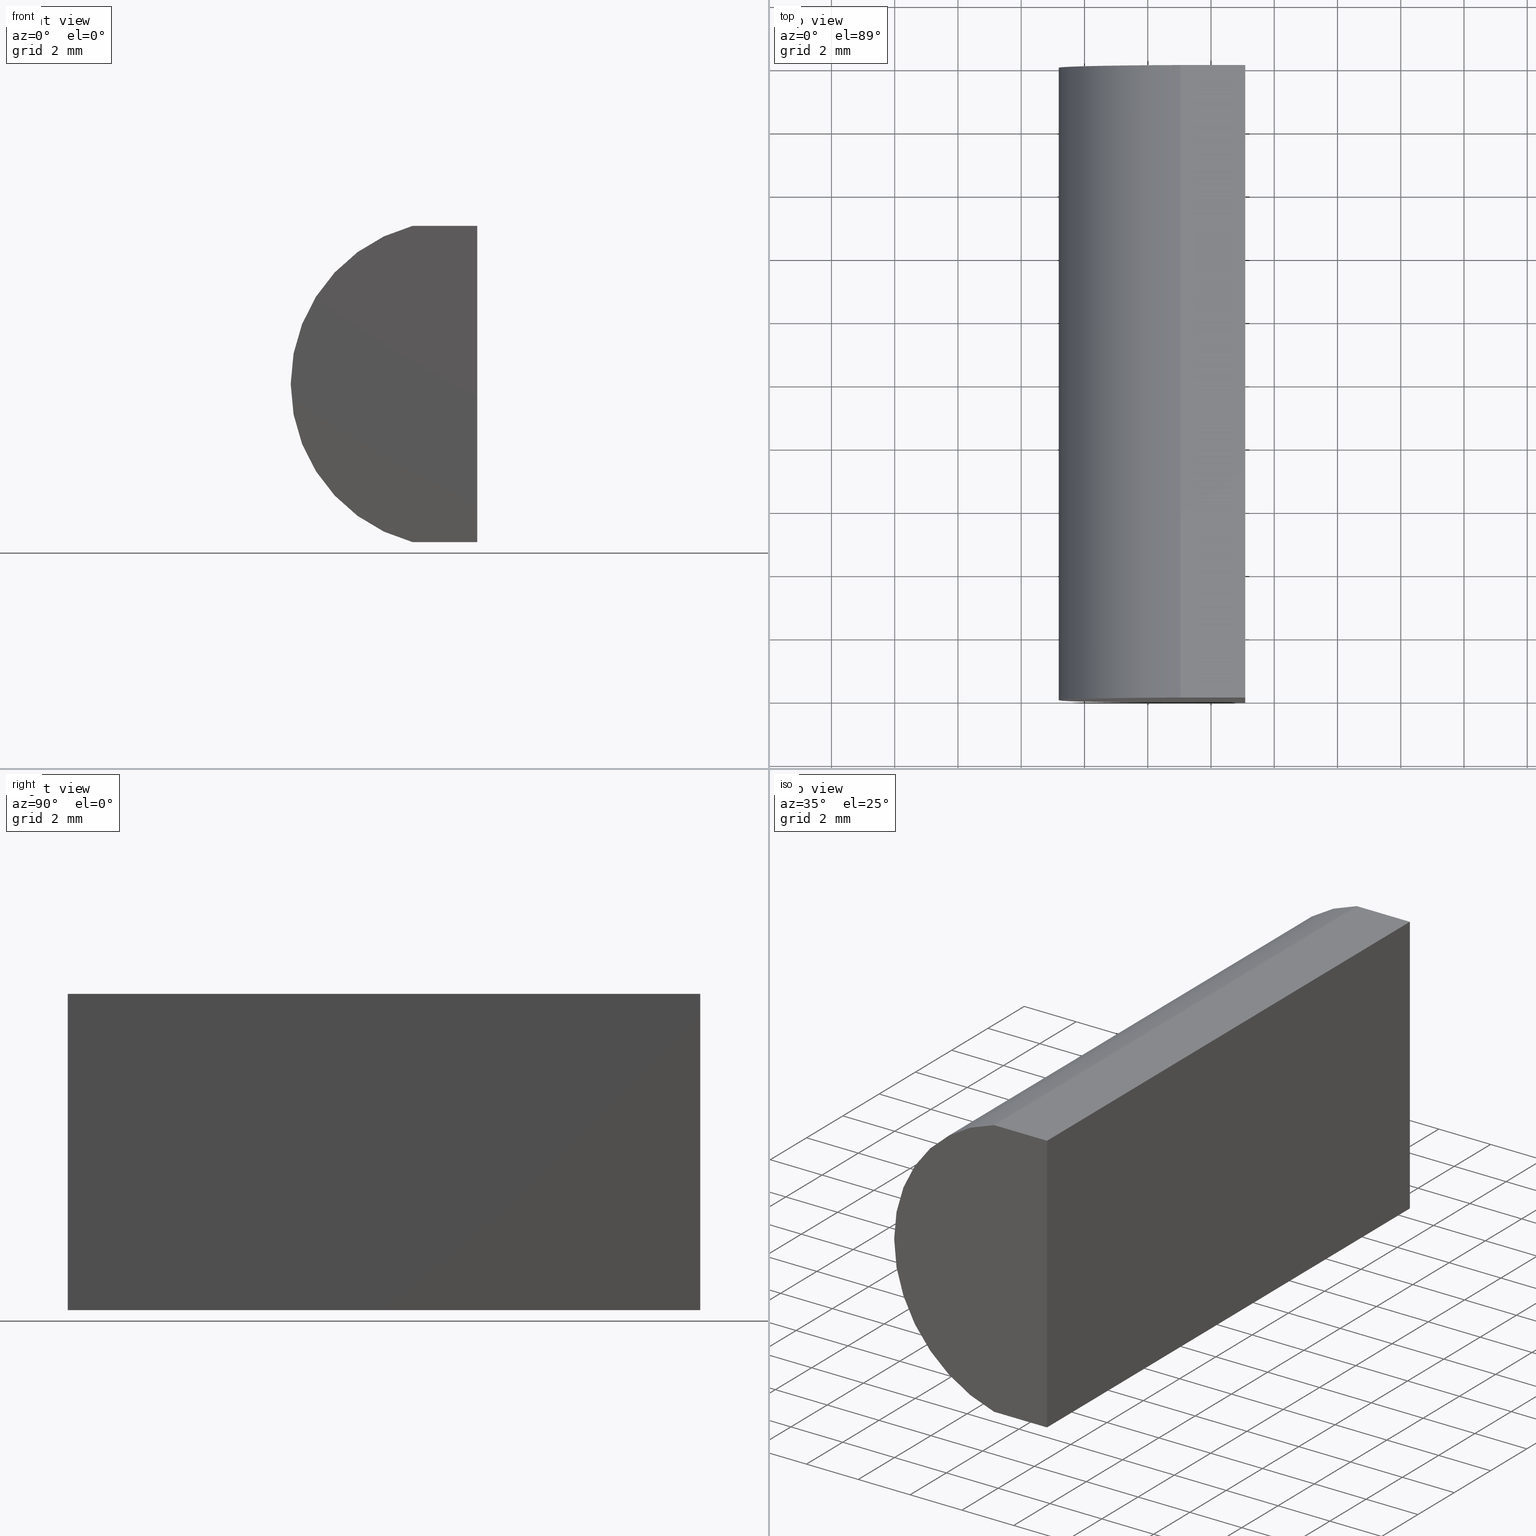
[diagram: canonical four-view strip — front | top / right | iso, engineering-drawing reading convention]
A machine part, canonical four-view strip (front | top / right | iso — engineering-drawing reading convention). The complete STEP part file that produces these views, byte-faithful:
ISO-10303-21;
HEADER;
FILE_DESCRIPTION (( 'STEP AP214' ),
    '1' );
FILE_NAME ('155023.STEP',
    '2019-06-17T05:37:24',
    ( 'user' ),
    ( '΢���й�' ),
    'SwSTEP 2.0',
    'SolidWorks 2016',
    '' );
FILE_SCHEMA (( 'AUTOMOTIVE_DESIGN' ));
ENDSEC;

DATA;
#1 = ORIENTED_EDGE ( 'NONE', *, *, #113, .F. ) ;
#2 = AXIS2_PLACEMENT_3D ( 'NONE', #179, #9, #182 ) ;
#3 = UNCERTAINTY_MEASURE_WITH_UNIT (LENGTH_MEASURE( 1.000000000000000100E-005 ), #78, 'distance_accuracy_value', 'NONE');
#4 = DIRECTION ( 'NONE',  ( 5.938287621091856200E-015, -0.0000000000000000000, 1.000000000000000000 ) ) ;
#5 = PRODUCT_RELATED_PRODUCT_CATEGORY ( 'part', '', ( #134 ) ) ;
#6 = DIRECTION ( 'NONE',  ( 1.000000000000000000, 0.0000000000000000000, -5.938287621091856200E-015 ) ) ;
#7 = CLOSED_SHELL ( 'NONE', ( #10, #129, #145, #155, #177, #29 ) ) ;
#8 = COLOUR_RGB ( '',1.000000000000000000, 1.000000000000000000, 1.000000000000000000 ) ;
#9 = DIRECTION ( 'NONE',  ( 0.0000000000000000000, 1.000000000000000000, 0.0000000000000000000 ) ) ;
#10 = ADVANCED_FACE ( 'NONE', ( #178 ), #190, .T. ) ;
#11 =( NAMED_UNIT ( * ) SI_UNIT ( $, .STERADIAN. ) SOLID_ANGLE_UNIT ( ) );
#12 = EDGE_CURVE ( 'NONE', #67, #23, #111, .T. ) ;
#13 = CARTESIAN_POINT ( 'NONE',  ( 5.085204334851267700, 0.0000000000000000000, 5.000000000000000000 ) ) ;
#14 = DIRECTION ( 'NONE',  ( 1.000000000000000000, 0.0000000000000000000, 0.0000000000000000000 ) ) ;
#15 = AXIS2_PLACEMENT_3D ( 'NONE', #184, #4, #6 ) ;
#16 = PRODUCT_DEFINITION ( 'δ֪', '', #99, #189 ) ;
#17 = DIRECTION ( 'NONE',  ( 0.0000000000000000000, 0.0000000000000000000, 1.000000000000000000 ) ) ;
#18 = EDGE_LOOP ( 'NONE', ( #116, #1, #139, #26 ) ) ;
#19 = CARTESIAN_POINT ( 'NONE',  ( 3.040327914802593700, 0.0000000000000000000, 5.000000000000000000 ) ) ;
#20 = VECTOR ( 'NONE', #91, 1000.000000000000000 ) ;
#21 = LINE ( 'NONE', #169, #45 ) ;
#22 = AXIS2_PLACEMENT_3D ( 'NONE', #85, #27, #142 ) ;
#23 = VERTEX_POINT ( 'NONE', #186 ) ;
#24 = EDGE_CURVE ( 'NONE', #123, #43, #71, .T. ) ;
#25 = ORIENTED_EDGE ( 'NONE', *, *, #167, .T. ) ;
#26 = ORIENTED_EDGE ( 'NONE', *, *, #24, .T. ) ;
#27 = DIRECTION ( 'NONE',  ( 0.0000000000000000000, 1.000000000000000000, 0.0000000000000000000 ) ) ;
#28 = EDGE_CURVE ( 'NONE', #156, #123, #66, .T. ) ;
#29 = ADVANCED_FACE ( 'NONE', ( #32 ), #108, .F. ) ;
#30 = AXIS2_PLACEMENT_3D ( 'NONE', #196, #38, #76 ) ;
#31 = CIRCLE ( 'NONE', #150, 5.170000000000000800 ) ;
#32 = FACE_OUTER_BOUND ( 'NONE', #153, .T. ) ;
#33 = APPLICATION_PROTOCOL_DEFINITION ( 'draft international standard', 'automotive_design', 1998, #75 ) ;
#34 = CARTESIAN_POINT ( 'NONE',  ( 5.085204334851264100, 20.00000000000000000, -5.000000000000012400 ) ) ;
#35 = FACE_OUTER_BOUND ( 'NONE', #154, .T. ) ;
#36 = CARTESIAN_POINT ( 'NONE',  ( 5.085204334851267700, 20.00000000000000000, 5.000000000000000000 ) ) ;
#37 = EDGE_LOOP ( 'NONE', ( #80, #117, #77, #101 ) ) ;
#38 = DIRECTION ( 'NONE',  ( 0.0000000000000000000, 1.000000000000000000, 0.0000000000000000000 ) ) ;
#39 = PRESENTATION_STYLE_ASSIGNMENT (( #105 ) ) ;
#40 = CARTESIAN_POINT ( 'NONE',  ( 3.040327914802593700, 0.0000000000000000000, -5.000000000000000000 ) ) ;
#41 = STYLED_ITEM ( 'NONE', ( #39 ), #193 ) ;
#42 = ORIENTED_EDGE ( 'NONE', *, *, #12, .F. ) ;
#43 = VERTEX_POINT ( 'NONE', #13 ) ;
#44 = PLANE ( 'NONE',  #74 ) ;
#45 = VECTOR ( 'NONE', #194, 1000.000000000000000 ) ;
#46 = EDGE_CURVE ( 'NONE', #156, #183, #21, .T. ) ;
#47 = DIRECTION ( 'NONE',  ( -1.000000000000000000, 0.0000000000000000000, 3.469446951953609800E-016 ) ) ;
#48 = CARTESIAN_POINT ( 'NONE',  ( 5.085204334851264100, 0.0000000000000000000, -5.000000000000012400 ) ) ;
#49 = VECTOR ( 'NONE', #65, 1000.000000000000000 ) ;
#50 = COLOUR_RGB ( '',1.000000000000000000, 1.000000000000000000, 1.000000000000000000 ) ;
#51 = CARTESIAN_POINT ( 'NONE',  ( 3.040327914802593700, 20.00000000000000000, 5.000000000000000000 ) ) ;
#52 = CARTESIAN_POINT ( 'NONE',  ( 3.040327914802593700, 20.00000000000000000, -5.000000000000000000 ) ) ;
#53 = ORIENTED_EDGE ( 'NONE', *, *, #28, .T. ) ;
#54 = LINE ( 'NONE', #82, #133 ) ;
#55 = FILL_AREA_STYLE_COLOUR ( '', #50 ) ;
#56 = DIRECTION ( 'NONE',  ( 1.000000000000000000, 0.0000000000000000000, 0.0000000000000000000 ) ) ;
#57 = LINE ( 'NONE', #202, #61 ) ;
#58 = PRODUCT_DEFINITION_SHAPE ( 'NONE', 'NONE',  #16 ) ;
#59 = ORIENTED_EDGE ( 'NONE', *, *, #119, .F. ) ;
#60 = VECTOR ( 'NONE', #103, 1000.000000000000000 ) ;
#61 = VECTOR ( 'NONE', #143, 1000.000000000000000 ) ;
#62 =( NAMED_UNIT ( * ) PLANE_ANGLE_UNIT ( ) SI_UNIT ( $, .RADIAN. ) );
#63 =( LENGTH_UNIT ( ) NAMED_UNIT ( * ) SI_UNIT ( .MILLI., .METRE. ) );
#64 = PRESENTATION_LAYER_ASSIGNMENT (  '', '', ( #41 ) ) ;
#65 = DIRECTION ( 'NONE',  ( -0.0000000000000000000, -1.000000000000000000, -0.0000000000000000000 ) ) ;
#66 = LINE ( 'NONE', #93, #157 ) ;
#67 = VERTEX_POINT ( 'NONE', #95 ) ;
#68 = AXIS2_PLACEMENT_3D ( 'NONE', #112, #17, #56 ) ;
#69 = EDGE_CURVE ( 'NONE', #123, #67, #54, .T. ) ;
#70 = VERTEX_POINT ( 'NONE', #40 ) ;
#71 = LINE ( 'NONE', #192, #49 ) ;
#72 = ORIENTED_EDGE ( 'NONE', *, *, #96, .F. ) ;
#73 =( NAMED_UNIT ( * ) SI_UNIT ( $, .STERADIAN. ) SOLID_ANGLE_UNIT ( ) );
#74 = AXIS2_PLACEMENT_3D ( 'NONE', #173, #86, #152 ) ;
#75 = APPLICATION_CONTEXT ( 'automotive_design' ) ;
#76 = DIRECTION ( 'NONE',  ( 0.0000000000000000000, -0.0000000000000000000, 1.000000000000000000 ) ) ;
#77 = ORIENTED_EDGE ( 'NONE', *, *, #28, .F. ) ;
#78 =( LENGTH_UNIT ( ) NAMED_UNIT ( * ) SI_UNIT ( .MILLI., .METRE. ) );
#79 = EDGE_CURVE ( 'NONE', #183, #43, #88, .T. ) ;
#80 = ORIENTED_EDGE ( 'NONE', *, *, #79, .T. ) ;
#81 = VECTOR ( 'NONE', #165, 1000.000000000000000 ) ;
#82 = CARTESIAN_POINT ( 'NONE',  ( 5.085204334851264100, 20.00000000000000000, -5.000000000000012400 ) ) ;
#83 = APPLICATION_PROTOCOL_DEFINITION ( 'draft international standard', 'automotive_design', 1998, #98 ) ;
#84 =( GEOMETRIC_REPRESENTATION_CONTEXT ( 3 ) GLOBAL_UNCERTAINTY_ASSIGNED_CONTEXT ( ( #161 ) ) GLOBAL_UNIT_ASSIGNED_CONTEXT ( ( #138, #62, #11 ) ) REPRESENTATION_CONTEXT ( 'NONE', 'WORKASPACE' ) );
#85 = CARTESIAN_POINT ( 'NONE',  ( 4.355204334851265500, 0.0000000000000000000, 4.286263797015675000E-017 ) ) ;
#86 = DIRECTION ( 'NONE',  ( 0.0000000000000000000, 0.0000000000000000000, -1.000000000000000000 ) ) ;
#87 = ORIENTED_EDGE ( 'NONE', *, *, #119, .T. ) ;
#88 = LINE ( 'NONE', #19, #175 ) ;
#89 =( NAMED_UNIT ( * ) PLANE_ANGLE_UNIT ( ) SI_UNIT ( $, .RADIAN. ) );
#90 = AXIS2_PLACEMENT_3D ( 'NONE', #191, #128, #136 ) ;
#91 = DIRECTION ( 'NONE',  ( -0.0000000000000000000, -1.000000000000000000, -0.0000000000000000000 ) ) ;
#92 = SURFACE_SIDE_STYLE ('',( #132 ) ) ;
#93 = CARTESIAN_POINT ( 'NONE',  ( 3.040327914802593700, 20.00000000000000000, 5.000000000000000000 ) ) ;
#94 = DIRECTION ( 'NONE',  ( 0.0000000000000000000, 1.000000000000000000, 0.0000000000000000000 ) ) ;
#95 = CARTESIAN_POINT ( 'NONE',  ( 5.085204334851264100, 20.00000000000000000, -5.000000000000012400 ) ) ;
#96 = EDGE_CURVE ( 'NONE', #23, #70, #140, .T. ) ;
#97 = EDGE_LOOP ( 'NONE', ( #87, #53, #166, #164 ) ) ;
#98 = APPLICATION_CONTEXT ( 'automotive_design' ) ;
#99 = PRODUCT_DEFINITION_FORMATION_WITH_SPECIFIED_SOURCE ( '�κ�', '', #134, .NOT_KNOWN. ) ;
#100 = LINE ( 'NONE', #121, #60 ) ;
#101 = ORIENTED_EDGE ( 'NONE', *, *, #46, .T. ) ;
#102 = MECHANICAL_DESIGN_GEOMETRIC_PRESENTATION_REPRESENTATION (  '', ( #41 ), #84 ) ;
#103 = DIRECTION ( 'NONE',  ( -1.000000000000000000, -0.0000000000000000000, 5.938287621091856200E-015 ) ) ;
#104 = DIRECTION ( 'NONE',  ( -1.000000000000000000, -0.0000000000000000000, 5.938287621091856200E-015 ) ) ;
#105 = SURFACE_STYLE_USAGE ( .BOTH. , #92 ) ;
#106 =( NAMED_UNIT ( * ) PLANE_ANGLE_UNIT ( ) SI_UNIT ( $, .RADIAN. ) );
#107 =( GEOMETRIC_REPRESENTATION_CONTEXT ( 3 ) GLOBAL_UNCERTAINTY_ASSIGNED_CONTEXT ( ( #3 ) ) GLOBAL_UNIT_ASSIGNED_CONTEXT ( ( #78, #89, #73 ) ) REPRESENTATION_CONTEXT ( 'NONE', 'WORKASPACE' ) );
#108 = PLANE ( 'NONE',  #22 ) ;
#109 = ORIENTED_EDGE ( 'NONE', *, *, #46, .F. ) ;
#110 = CIRCLE ( 'NONE', #2, 5.170000000000000800 ) ;
#111 = LINE ( 'NONE', #52, #137 ) ;
#112 = CARTESIAN_POINT ( 'NONE',  ( 0.0000000000000000000, 0.0000000000000000000, 0.0000000000000000000 ) ) ;
#113 = EDGE_CURVE ( 'NONE', #67, #144, #57, .T. ) ;
#114 = PRESENTATION_STYLE_ASSIGNMENT (( #127 ) ) ;
#115 = ORIENTED_EDGE ( 'NONE', *, *, #198, .F. ) ;
#116 = ORIENTED_EDGE ( 'NONE', *, *, #197, .T. ) ;
#117 = ORIENTED_EDGE ( 'NONE', *, *, #24, .F. ) ;
#118 = ORIENTED_EDGE ( 'NONE', *, *, #96, .T. ) ;
#119 = EDGE_CURVE ( 'NONE', #23, #156, #31, .T. ) ;
#120 =( NAMED_UNIT ( * ) SI_UNIT ( $, .STERADIAN. ) SOLID_ANGLE_UNIT ( ) );
#121 = CARTESIAN_POINT ( 'NONE',  ( 3.040327914802593700, 0.0000000000000000000, -5.000000000000000000 ) ) ;
#122 = PRESENTATION_LAYER_ASSIGNMENT (  '', '', ( #158 ) ) ;
#123 = VERTEX_POINT ( 'NONE', #36 ) ;
#124 = CARTESIAN_POINT ( 'NONE',  ( 3.040327914802593700, 0.0000000000000000000, 5.000000000000000000 ) ) ;
#125 = DIRECTION ( 'NONE',  ( -3.469446951953609800E-016, -0.0000000000000000000, -1.000000000000000000 ) ) ;
#126 = FACE_OUTER_BOUND ( 'NONE', #37, .T. ) ;
#127 = SURFACE_STYLE_USAGE ( .BOTH. , #135 ) ;
#128 = DIRECTION ( 'NONE',  ( -0.0000000000000000000, -1.000000000000000000, -0.0000000000000000000 ) ) ;
#129 = ADVANCED_FACE ( 'NONE', ( #126 ), #44, .F. ) ;
#130 = CARTESIAN_POINT ( 'NONE',  ( 5.085204334851264100, 0.0000000000000000000, -5.000000000000012400 ) ) ;
#131 =( GEOMETRIC_REPRESENTATION_CONTEXT ( 3 ) GLOBAL_UNCERTAINTY_ASSIGNED_CONTEXT ( ( #187 ) ) GLOBAL_UNIT_ASSIGNED_CONTEXT ( ( #63, #106, #120 ) ) REPRESENTATION_CONTEXT ( 'NONE', 'WORKASPACE' ) );
#132 = SURFACE_STYLE_FILL_AREA ( #171 ) ;
#133 = VECTOR ( 'NONE', #125, 1000.000000000000000 ) ;
#134 = PRODUCT ( '155023', '155023', '', ( #159 ) ) ;
#135 = SURFACE_SIDE_STYLE ('',( #148 ) ) ;
#136 = DIRECTION ( 'NONE',  ( 0.0000000000000000000, 0.0000000000000000000, -1.000000000000000000 ) ) ;
#137 = VECTOR ( 'NONE', #104, 1000.000000000000000 ) ;
#138 =( LENGTH_UNIT ( ) NAMED_UNIT ( * ) SI_UNIT ( .MILLI., .METRE. ) );
#139 = ORIENTED_EDGE ( 'NONE', *, *, #69, .F. ) ;
#140 = LINE ( 'NONE', #180, #20 ) ;
#141 = FILL_AREA_STYLE ('',( #146 ) ) ;
#142 = DIRECTION ( 'NONE',  ( 0.0000000000000000000, -0.0000000000000000000, 1.000000000000000000 ) ) ;
#143 = DIRECTION ( 'NONE',  ( -0.0000000000000000000, -1.000000000000000000, -0.0000000000000000000 ) ) ;
#144 = VERTEX_POINT ( 'NONE', #130 ) ;
#145 = ADVANCED_FACE ( 'NONE', ( #188 ), #181, .F. ) ;
#146 = FILL_AREA_STYLE_COLOUR ( '', #8 ) ;
#147 = DIRECTION ( 'NONE',  ( 1.000000000000000000, 0.0000000000000000000, 0.0000000000000000000 ) ) ;
#148 = SURFACE_STYLE_FILL_AREA ( #141 ) ;
#149 = EDGE_LOOP ( 'NONE', ( #25, #109, #59, #118 ) ) ;
#150 = AXIS2_PLACEMENT_3D ( 'NONE', #185, #94, #168 ) ;
#151 = PLANE ( 'NONE',  #15 ) ;
#152 = DIRECTION ( 'NONE',  ( -1.000000000000000000, 0.0000000000000000000, -0.0000000000000000000 ) ) ;
#153 = EDGE_LOOP ( 'NONE', ( #201, #115, #174, #199 ) ) ;
#154 = EDGE_LOOP ( 'NONE', ( #195, #72, #42, #203 ) ) ;
#155 = ADVANCED_FACE ( 'NONE', ( #35 ), #151, .F. ) ;
#156 = VERTEX_POINT ( 'NONE', #51 ) ;
#157 = VECTOR ( 'NONE', #14, 1000.000000000000000 ) ;
#158 = STYLED_ITEM ( 'NONE', ( #114 ), #163 ) ;
#159 = PRODUCT_CONTEXT ( 'NONE', #75, 'mechanical' ) ;
#160 = AXIS2_PLACEMENT_3D ( 'NONE', #34, #47, #204 ) ;
#161 = UNCERTAINTY_MEASURE_WITH_UNIT (LENGTH_MEASURE( 1.000000000000000100E-005 ), #138, 'distance_accuracy_value', 'NONE');
#162 = MECHANICAL_DESIGN_GEOMETRIC_PRESENTATION_REPRESENTATION (  '', ( #158 ), #131 ) ;
#163 = ADVANCED_BREP_SHAPE_REPRESENTATION ( '155023', ( #193, #68 ), #107 ) ;
#164 = ORIENTED_EDGE ( 'NONE', *, *, #12, .T. ) ;
#165 = DIRECTION ( 'NONE',  ( -3.469446951953609800E-016, -0.0000000000000000000, -1.000000000000000000 ) ) ;
#166 = ORIENTED_EDGE ( 'NONE', *, *, #69, .T. ) ;
#167 = EDGE_CURVE ( 'NONE', #70, #183, #110, .T. ) ;
#168 = DIRECTION ( 'NONE',  ( 0.0000000000000000000, 0.0000000000000000000, 1.000000000000000000 ) ) ;
#169 = CARTESIAN_POINT ( 'NONE',  ( 3.040327914802593700, 20.00000000000000000, 5.000000000000000000 ) ) ;
#170 = SHAPE_DEFINITION_REPRESENTATION ( #58, #163 ) ;
#171 = FILL_AREA_STYLE ('',( #55 ) ) ;
#172 = PLANE ( 'NONE',  #30 ) ;
#173 = CARTESIAN_POINT ( 'NONE',  ( 3.040327914802593700, 20.00000000000000000, 5.000000000000000000 ) ) ;
#174 = ORIENTED_EDGE ( 'NONE', *, *, #197, .F. ) ;
#175 = VECTOR ( 'NONE', #147, 1000.000000000000000 ) ;
#176 = LINE ( 'NONE', #48, #81 ) ;
#177 = ADVANCED_FACE ( 'NONE', ( #200 ), #172, .T. ) ;
#178 = FACE_OUTER_BOUND ( 'NONE', #149, .T. ) ;
#179 = CARTESIAN_POINT ( 'NONE',  ( 4.355204334851265500, 0.0000000000000000000, 4.286263797015675000E-017 ) ) ;
#180 = CARTESIAN_POINT ( 'NONE',  ( 3.040327914802593700, 20.00000000000000000, -5.000000000000000000 ) ) ;
#181 = PLANE ( 'NONE',  #160 ) ;
#182 = DIRECTION ( 'NONE',  ( 0.0000000000000000000, 0.0000000000000000000, 1.000000000000000000 ) ) ;
#183 = VERTEX_POINT ( 'NONE', #124 ) ;
#184 = CARTESIAN_POINT ( 'NONE',  ( 3.040327914802593700, 20.00000000000000000, -5.000000000000000000 ) ) ;
#185 = CARTESIAN_POINT ( 'NONE',  ( 4.355204334851265500, 20.00000000000000000, 4.286263797015675000E-017 ) ) ;
#186 = CARTESIAN_POINT ( 'NONE',  ( 3.040327914802593700, 20.00000000000000000, -5.000000000000000000 ) ) ;
#187 = UNCERTAINTY_MEASURE_WITH_UNIT (LENGTH_MEASURE( 1.000000000000000100E-005 ), #63, 'distance_accuracy_value', 'NONE');
#188 = FACE_OUTER_BOUND ( 'NONE', #18, .T. ) ;
#189 = PRODUCT_DEFINITION_CONTEXT ( 'detailed design', #98, 'design' ) ;
#190 = CYLINDRICAL_SURFACE ( 'NONE', #90, 5.170000000000000800 ) ;
#191 = CARTESIAN_POINT ( 'NONE',  ( 4.355204334851265500, 20.00000000000000000, 4.286263797015675000E-017 ) ) ;
#192 = CARTESIAN_POINT ( 'NONE',  ( 5.085204334851267700, 20.00000000000000000, 5.000000000000000000 ) ) ;
#193 = MANIFOLD_SOLID_BREP ( '͹̨-����1', #7 ) ;
#194 = DIRECTION ( 'NONE',  ( -0.0000000000000000000, -1.000000000000000000, -0.0000000000000000000 ) ) ;
#195 = ORIENTED_EDGE ( 'NONE', *, *, #198, .T. ) ;
#196 = CARTESIAN_POINT ( 'NONE',  ( 4.355204334851265500, 20.00000000000000000, 4.286263797015675000E-017 ) ) ;
#197 = EDGE_CURVE ( 'NONE', #43, #144, #176, .T. ) ;
#198 = EDGE_CURVE ( 'NONE', #144, #70, #100, .T. ) ;
#199 = ORIENTED_EDGE ( 'NONE', *, *, #79, .F. ) ;
#200 = FACE_OUTER_BOUND ( 'NONE', #97, .T. ) ;
#201 = ORIENTED_EDGE ( 'NONE', *, *, #167, .F. ) ;
#202 = CARTESIAN_POINT ( 'NONE',  ( 5.085204334851264100, 20.00000000000000000, -5.000000000000012400 ) ) ;
#203 = ORIENTED_EDGE ( 'NONE', *, *, #113, .T. ) ;
#204 = DIRECTION ( 'NONE',  ( 3.469446951953609800E-016, 0.0000000000000000000, 1.000000000000000000 ) ) ;
ENDSEC;
END-ISO-10303-21;
